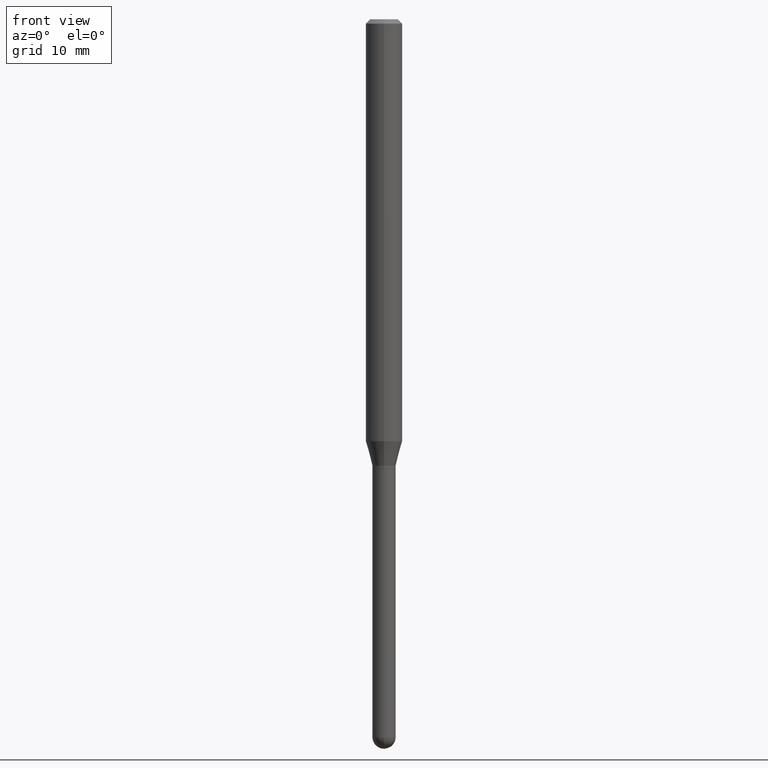
[diagram: clean part render]
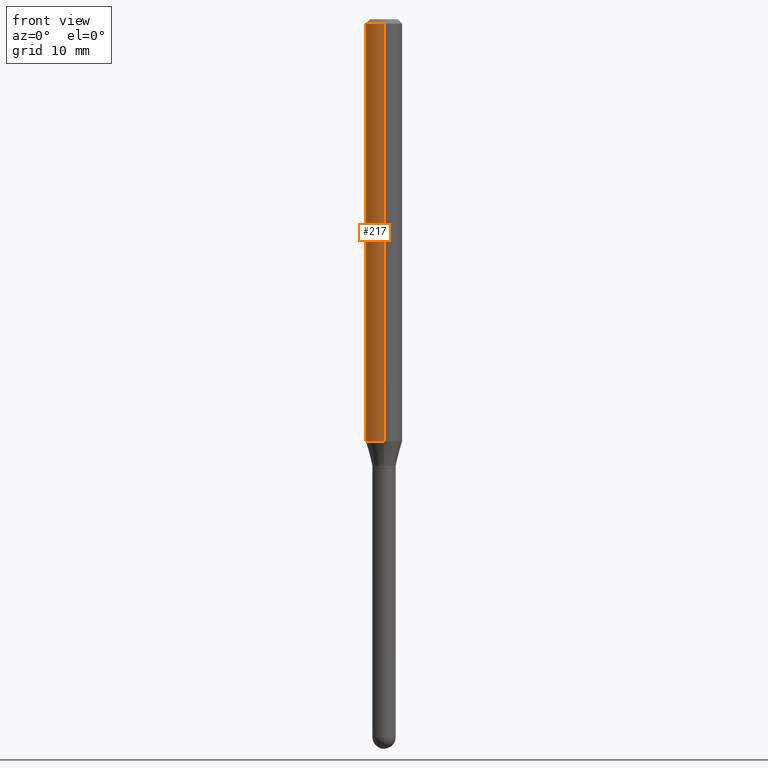
[diagram: same view with one face highlighted and labeled with its STEP entity id]
A machine part, front view. The second image highlights one B-rep face of the part: STEP entity #217.
In plain terms, the highlighted cylindrical surface (edge-blend (fillet) strip) has radius 1.5875 mm, axis along (-0, 0, 1).
Its self-contained STEP definition (entity closure, byte-faithful):
#1 = DIRECTION ( 'NONE',  ( -2.445439558819797748E-29, 3.491523222734966752E-15, 1.000000000000000000 ) ) ;
#21 = AXIS2_PLACEMENT_3D ( 'NONE', #161, #73, #388 ) ;
#73 = DIRECTION ( 'NONE',  ( -2.445439558819798028E-29, 3.491523222734966752E-15, 1.000000000000000000 ) ) ;
#86 = EDGE_CURVE ( 'NONE', #447, #452, #131, .T. ) ;
#88 = CARTESIAN_POINT ( 'NONE',  ( 3.668159338229699547E-31, -5.237284834102453580E-17, -0.01500000000000000812 ) ) ;
#96 = DIRECTION ( 'NONE',  ( -2.445439558819798028E-29, 3.491523222734966752E-15, 1.000000000000000000 ) ) ;
#113 = CARTESIAN_POINT ( 'NONE',  ( 4.440892098500982135E-16, 0.06249999999999995837, -0.01500000000000022669 ) ) ;
#123 = CARTESIAN_POINT ( 'NONE',  ( 4.440892098500981149E-16, 0.06249999999999499012, -1.446028856829699505 ) ) ;
#124 = ORIENTED_EDGE ( 'NONE', *, *, #264, .T. ) ;
#131 = CIRCLE ( 'NONE', #383, 0.06250000000000000000 ) ;
#161 = CARTESIAN_POINT ( 'NONE',  ( 0.000000000000000000, 0.000000000000000000, 0.000000000000000000 ) ) ;
#162 = EDGE_CURVE ( 'NONE', #447, #492, #432, .T. ) ;
#168 = VERTEX_POINT ( 'NONE', #275 ) ;
#181 = ORIENTED_EDGE ( 'NONE', *, *, #323, .F. ) ;
#182 = VECTOR ( 'NONE', #1, 39.37007874015748143 ) ;
#192 = CARTESIAN_POINT ( 'NONE',  ( -4.364351673553559242E-16, -0.06250000000000500988, -1.446028856829699061 ) ) ;
#199 = FACE_OUTER_BOUND ( 'NONE', #484, .T. ) ;
#210 = ORIENTED_EDGE ( 'NONE', *, *, #86, .T. ) ;
#212 = DIRECTION ( 'NONE',  ( -6.982962677686265922E-15, -1.000000000000000000, 3.483106191921935554E-15 ) ) ;
#217 = ADVANCED_FACE ( 'NONE', ( #199 ), #393, .T. ) ;
#220 = AXIS2_PLACEMENT_3D ( 'NONE', #88, #96, #212 ) ;
#222 = CARTESIAN_POINT ( 'NONE',  ( 3.536176169686316712E-29, -5.048843334365790942E-15, -1.446028856829699283 ) ) ;
#240 = LINE ( 'NONE', #315, #182 ) ;
#264 = EDGE_CURVE ( 'NONE', #452, #168, #240, .T. ) ;
#275 = CARTESIAN_POINT ( 'NONE',  ( -4.364351673553912750E-16, -0.06250000000000005551, -0.01499999999999979128 ) ) ;
#309 = DIRECTION ( 'NONE',  ( -6.982962677686265922E-15, -1.000000000000000000, 4.370956789862821150E-15 ) ) ;
#315 = CARTESIAN_POINT ( 'NONE',  ( -4.364351673553916201E-16, -0.06250000000000000000, 2.182202014209354220E-16 ) ) ;
#318 = DIRECTION ( 'NONE',  ( -2.445439558819797748E-29, 3.491523222734966752E-15, 1.000000000000000000 ) ) ;
#323 = EDGE_CURVE ( 'NONE', #492, #168, #405, .T. ) ;
#380 = DIRECTION ( 'NONE',  ( -2.445439558819798028E-29, 3.491523222734966752E-15, 1.000000000000000000 ) ) ;
#383 = AXIS2_PLACEMENT_3D ( 'NONE', #222, #380, #309 ) ;
#388 = DIRECTION ( 'NONE',  ( -6.982962677686265922E-15, -1.000000000000000000, 3.491523222734966752E-15 ) ) ;
#393 = CYLINDRICAL_SURFACE ( 'NONE', #21, 0.06250000000000000000 ) ;
#403 = ORIENTED_EDGE ( 'NONE', *, *, #162, .F. ) ;
#405 = CIRCLE ( 'NONE', #220, 0.06250000000000000000 ) ;
#415 = VECTOR ( 'NONE', #318, 39.37007874015748143 ) ;
#428 = CARTESIAN_POINT ( 'NONE',  ( 4.440892098500625669E-16, 0.06250000000000000000, -2.182202014209354220E-16 ) ) ;
#432 = LINE ( 'NONE', #428, #415 ) ;
#447 = VERTEX_POINT ( 'NONE', #123 ) ;
#452 = VERTEX_POINT ( 'NONE', #192 ) ;
#484 = EDGE_LOOP ( 'NONE', ( #403, #210, #124, #181 ) ) ;
#492 = VERTEX_POINT ( 'NONE', #113 ) ;